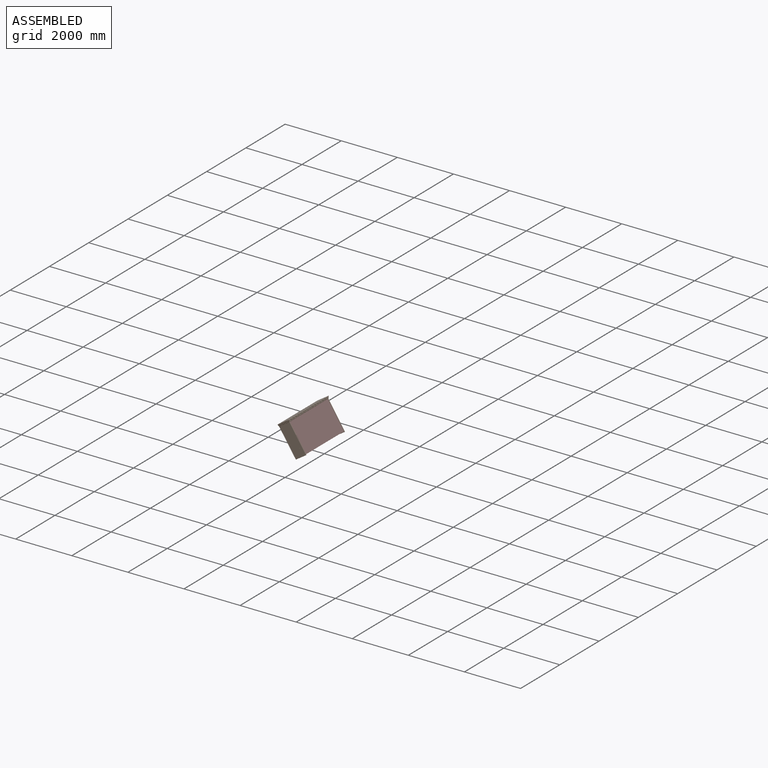
[diagram: assembled view]
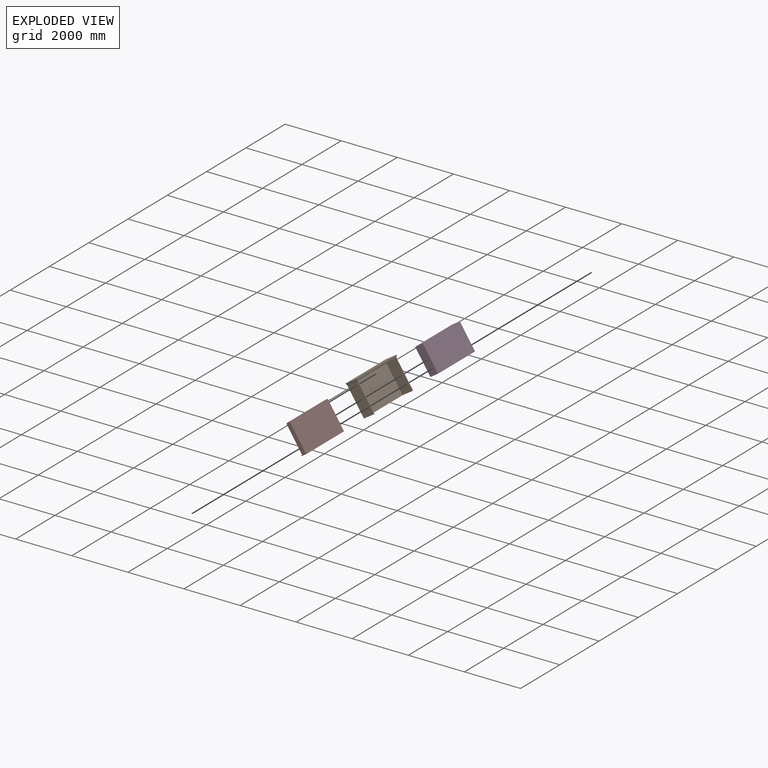
[diagram: exploded view]
GUIDED TOUR — MATED ASSEMBLY (Onshape document f06884bef4abd37ec8bd1d48, AutoMate assembly f06884bef4abd37ec8bd1d48_18d466214ae3073c1a5c1cfb_0f7172fed6433e7fdf9dc04e_default)

This assembly has 21 components, labeled P0..P20 below (a component is one placed occurrence of a part; the same part can appear more than once), held together by 22 mates. A mate is a constraint between two components; its type names the relative motion it leaves free:
  PLANAR — leaves sliding in the plane through the listed point (normal = the listed direction) and rotation about that normal free,
  REVOLUTE — leaves rotation about the listed axis free (a hinge).
Axis/direction vectors are unit vectors and 'through' points are millimeter coordinates, both in the assembly's world frame.

MATES
  1. REVOLUTE "Revolute 14": P14 <-> P7, axis (0.000, 1.000, 0.000) through (-254.89, 1122.72, 1074.25) mm
  2. REVOLUTE "Revolute 2": P12 <-> P17, axis (0.000, 1.000, 0.000) through (-254.89, -879.64, 1074.25) mm
  3. REVOLUTE "Revolute 3": P4 <-> P12, axis (0.000, -1.000, 0.000) through (-254.89, -879.64, 1074.25) mm
  4. REVOLUTE "Revolute 16": P9 <-> P12, axis (0.000, -1.000, 0.000) through (-254.89, -881.75, 1074.25) mm
  5. REVOLUTE "Revolute 9": P11 <-> P17, axis (0.000, -1.000, 0.000) through (-254.89, 1101.56, 1074.25) mm
  6. REVOLUTE "Revolute 12": P13 <-> P5, axis (0.000, -1.000, 0.000) through (-254.89, -858.48, 1074.25) mm
  7. REVOLUTE "Revolute 1": P15 <-> P5, axis (0.000, -1.000, 0.000) through (-254.89, -860.07, 1074.25) mm
  8. REVOLUTE "Revolute 6": P0 <-> P1, axis (0.000, -1.000, 0.000) through (-254.89, 1082.51, 1074.25) mm
  9. REVOLUTE "Revolute 13": P20 <-> P14, axis (0.000, 1.000, 0.000) through (-254.89, 1113.19, 1074.25) mm
  10. REVOLUTE "Revolute 17": P19 <-> P8, axis (0.000, 1.000, 0.000) through (-254.89, -837.32, 1074.25) mm
  11. PLANAR "Planar 3": P15 <-> P3, direction (0.000, -1.000, 0.000) through (-409.49, 1051.28, 1339.78) mm
  12. REVOLUTE "Revolute 10": P10 <-> P13, axis (0.000, 1.000, 0.000) through (-254.89, -848.96, 1074.25) mm
  13. REVOLUTE "Revolute 4": P16 <-> P4, axis (0.000, -1.000, 0.000) through (-254.89, -870.12, 1074.25) mm
  14. REVOLUTE "Revolute 5": P5 <-> P16, axis (0.000, -1.000, 0.000) through (-254.89, -860.59, 1074.25) mm
  15. REVOLUTE "Revolute 11": P10 <-> P8, axis (0.000, 1.000, 0.000) through (-254.89, -839.43, 1074.25) mm
  16. REVOLUTE "Revolute 19": P2 <-> P7, axis (0.000, -1.000, 0.000) through (-254.89, 1124.83, 1074.25) mm
  17. REVOLUTE "Revolute 8": P11 <-> P18, axis (0.000, -1.000, 0.000) through (-254.89, 1101.56, 1074.25) mm
  18. PLANAR "Planar 1": P15 <-> P3, direction (-0.837, 0.000, -0.547) through (-352.49, 105.13, 1374.57) mm
  19. REVOLUTE "Revolute 7": P18 <-> P0, axis (0.000, -1.000, 0.000) through (-254.89, 1092.03, 1074.25) mm
  20. REVOLUTE "Revolute 15": P20 <-> P11, axis (0.000, -1.000, 0.000) through (-254.89, 1103.67, 1074.25) mm
  21. REVOLUTE "Revolute 18": P6 <-> P1, axis (0.000, -1.000, 0.000) through (-254.89, 1080.40, 1074.25) mm
  22. PLANAR "Planar 2": P15 <-> P3, direction (-0.547, 0.000, 0.837) through (-151.25, 105.13, 891.65) mm

ASSEMBLY ORDER
  1. P15 — the base component [order verified]
  2. P17 [order verified]
  3. P3 [order verified]
  4. P5 [order verified]
  5. P9 [order verified]
  6. P16 [order verified]
  7. P13 [order verified]
  8. P4 [order verified]
  9. P10 [order verified]
  10. P8 [order verified]
  11. P12 [order verified]
  12. P19 [order verified]
  13. P1 [order verified]
  14. P0 [order verified]
  15. P18 [order verified]
  16. P11 [order verified]
  17. P6 [order verified]
  18. P20 [order verified]
  19. P14 [order verified]
  20. P7 [order verified]
  21. P2 [order verified]
(P3, P17 verified with a relaxed clearance tolerance: the source model stores slight part interference there.)
Order-tag legend:
  [order verified] — this step's position reverses a verified removal order: the component was checked to insert without passing through the ones already placed.

Of the 21 components, 21 carry the full construction recipe — the FeatureScript program that regenerates the part's solid from scratch; the rest are supplied as boundary geometry only.
Because this assembly has more than 12 components, the tour below covers the 12 most significant ones individually (every recipe-attached component first, then the largest by part volume), in assembly order; the remaining 9 are summarized together in a grouped section at the end.
Each toured component is shown spotlighted twice — in the assembled view, then in the exploded view, where a leader line traces a displaced component back to its assembled socket (saturated green if recipe-attached, orange if geometry-only; every other component desaturated gray) — followed by its recipe or geometry summary and the mates that hold it.
NOTE — this tour is split across 2 documents so each fits a 32k-token context. This is document 1: the component sections continue in the remaining 1 document, each repeating the header above.
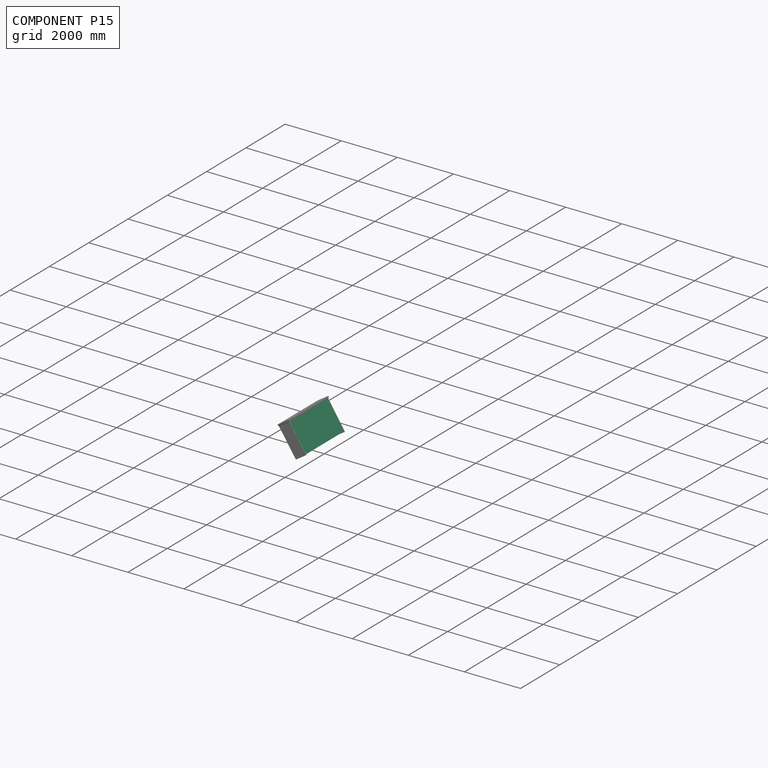
[diagram: component P15 — assembled]
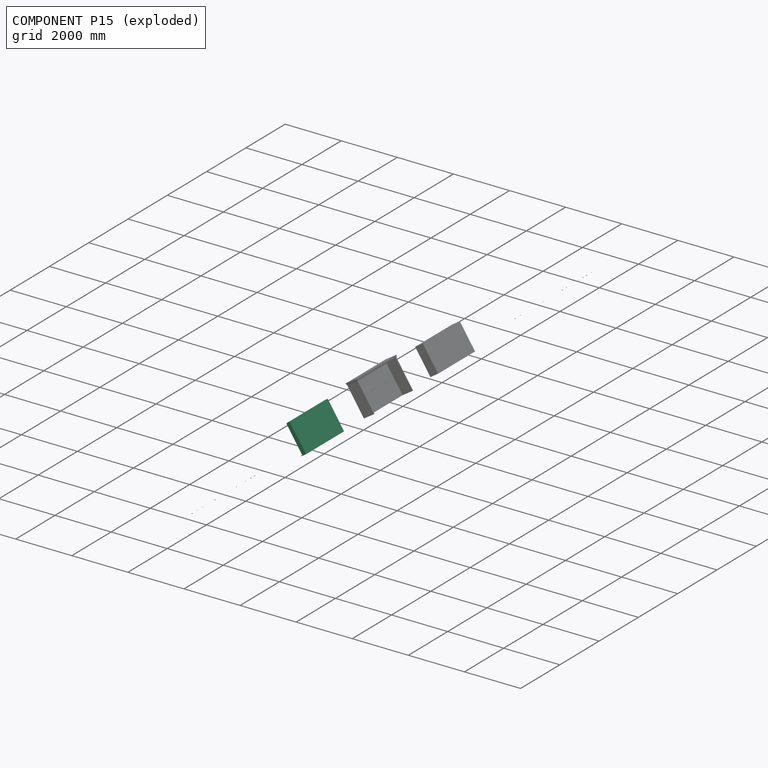
[diagram: component P15 — exploded]
COMPONENT P15 — recipe-attached (CADFS 00953847, mesh-verified: the recipe's output STEP matches this component's geometry to below the mesh-comparison resolution (tessellation chordal tolerance ~3.32 mm)).
Held by: REVOLUTE mate "Revolute 1" to P5; PLANAR mate "Planar 3" to P3; PLANAR mate "Planar 1" to P3; PLANAR mate "Planar 2" to P3.
Construction recipe (FeatureScript — the CAD program that rebuilds this solid; sketch coordinates are in the units given by the * unit suffixes, e.g. mm):

FeatureScript 1511;
import(path : "onshape/std/geometry.fs", version : "1511.0");
import(path : "onshape/std/common.fs", version : "1511.0");
const mm = millimeter;
const VERTEX = EntityType.VERTEX;
const EDGE = EntityType.EDGE;
const FACE = EntityType.FACE;
const BODY = EntityType.BODY;
function v(x, y){return vector(x, y);}
function OD(order){return orderDisambiguation(order);}
function OSD(set){return originalSetDisambiguation(set);}
function TD(topology){return topologyDisambiguation(topology);}
function TDD(query){return trueDependencyDisambiguation(query);}
function sQuery(a, b, c) {return sketchEntityQuery(a, b, c);}

annotation { "Feature Type Name" : "Feature", "Feature Type Description" : "" }
export const myFeature = defineFeature(function(context is Context, id is Id, definition is map)
    precondition{}
    {
        {
            var Q0;
            Q0=qCreatedBy(makeId("Top.planeOp"),FACE);
            var sketch = newSketch(context, id + "F0", { "sketchPlane" : qUnion([Q0])});
            skLineSegment(sketch, "E0.bottom", {"start": v(-965.2, 533.4) * mm, "end": v(965.2, 533.4) * mm});
            skLineSegment(sketch, "E0.top", {"start": v(-965.2, -533.4) * mm, "end": v(965.2, -533.4) * mm});
            skLineSegment(sketch, "E0.left", {"start": v(-965.2, 533.4) * mm, "end": v(-965.2, -533.4) * mm});
            skLineSegment(sketch, "E0.right", {"start": v(965.2, 533.4) * mm, "end": v(965.2, -533.4) * mm});
            skPoint(sketch, "E0.middle", {"position": v(0, 0) * mm});
            skSolve(sketch);
        }
        {
            var Q0;
            Q0 = qSketchRegion(id + "F0", true);
            extrude(context, id + "F1", {"entities" : qUnion([Q0]), "depth" : 19.05 * mm, "offsetDistance" : 25.4 * mm});
        }
        {
            var Q0;
            Q0=makeQuery(id+"F1.opExtrude","CAP_FACE",FACE,{"disambiguationData":[OSD([sQuery(id+"F0.wireOp",EDGE,"E0.bottom"),sQuery(id+"F0.wireOp",EDGE,"E0.top"),sQuery(id+"F0.wireOp",EDGE,"E0.left"),sQuery(id+"F0.wireOp",EDGE,"E0.right")])],"isStart":false});
            var sketch = newSketch(context, id + "F2", { "sketchPlane" : qUnion([Q0])});
            skLineSegment(sketch, "E1.bottom", {"start": v(-965.2, -533.4) * mm, "end": v(965.2, -533.4) * mm});
            skLineSegment(sketch, "E1.top", {"start": v(-965.2, -514.35) * mm, "end": v(965.2, -514.35) * mm});
            skLineSegment(sketch, "E1.left", {"start": v(-965.2, -533.4) * mm, "end": v(-965.2, -514.35) * mm});
            skLineSegment(sketch, "E1.right", {"start": v(965.2, -533.4) * mm, "end": v(965.2, -514.35) * mm});
            skSolve(sketch);
        }
        {
            var Q0;
            Q0 = qSketchRegion(id + "F2", true);
            extrude(context, id + "F3", {"entities" : qUnion([Q0]), "operationType" : NewBodyOperationType.ADD, "depth" : 88.9 * mm, "offsetDistance" : 25.4 * mm});
        }
        {
            var Q0;
            Q0=makeQuery(id+"F1.opExtrude","CAP_FACE",FACE,{"disambiguationData":[OSD([sQuery(id+"F0.wireOp",EDGE,"E0.bottom"),sQuery(id+"F0.wireOp",EDGE,"E0.top"),sQuery(id+"F0.wireOp",EDGE,"E0.left"),sQuery(id+"F0.wireOp",EDGE,"E0.right")])],"isStart":false});
            var sketch = newSketch(context, id + "F4", { "sketchPlane" : qUnion([Q0])});
            skLineSegment(sketch, "E2.bottom", {"start": v(-965.2, 533.4) * mm, "end": v(965.2, 533.4) * mm});
            skLineSegment(sketch, "E2.top", {"start": v(-965.2, 514.35) * mm, "end": v(965.2, 514.35) * mm});
            skLineSegment(sketch, "E2.left", {"start": v(-965.2, 533.4) * mm, "end": v(-965.2, 514.35) * mm});
            skLineSegment(sketch, "E2.right", {"start": v(965.2, 533.4) * mm, "end": v(965.2, 514.35) * mm});
            skSolve(sketch);
        }
        {
            var Q0;
            Q0 = qSketchRegion(id + "F4", true);
            extrude(context, id + "F5", {"entities" : qUnion([Q0]), "operationType" : NewBodyOperationType.ADD, "depth" : 190.5 * mm, "offsetDistance" : 25.4 * mm});
        }
        {
            var Q0;
            Q0=makeQuery(id+"F5.boolean.opBoolean","MERGE",FACE,{"derivedFrom":[makeQuery(id+"F3.boolean.opBoolean","MERGE",FACE,{"derivedFrom":[makeQuery(id+"F1.opExtrude","SWEPT_FACE",FACE,{"disambiguationData":[OSD([sQuery(id+"F0.wireOp",EDGE,"E0.left")])]}),makeQuery(id+"F3.opExtrude","SWEPT_FACE",FACE,{"disambiguationData":[OSD([sQuery(id+"F2.wireOp",EDGE,"E1.left")])]})]}),makeQuery(id+"F5.opExtrude","SWEPT_FACE",FACE,{"disambiguationData":[OSD([sQuery(id+"F4.wireOp",EDGE,"E2.left")])]})]});
            var sketch = newSketch(context, id + "F6", { "sketchPlane" : qUnion([Q0])});
            skLineSegment(sketch, "E3.bottom", {"start": v(533.4, 0) * mm, "end": v(-533.4, 0) * mm});
            skLineSegment(sketch, "E3.top", {"start": v(488.95, 152.4) * mm, "end": v(-533.4, 152.4) * mm});
            skLineSegment(sketch, "E3.left", {"start": v(533.4, 0) * mm, "end": v(533.4, 107.95) * mm});
            skLineSegment(sketch, "E3.right", {"start": v(-533.4, 0) * mm, "end": v(-533.4, 152.4) * mm});
            skPoint(sketch, "E4.visualSharp", {"position": v(533.4, 152.4) * mm});
            skArc(sketch, "E4.filletArc", {"start": v(533.4, 107.95) * mm, "mid": v(520.38, 139.38) * mm, "end": v(488.95, 152.4) * mm});
            skSolve(sketch);
        }
        {
            var Q0;
            Q0 = qSketchRegion(id + "F6", true);
            extrude(context, id + "F7", {"entities" : qUnion([Q0]), "operationType" : NewBodyOperationType.ADD, "oppositeDirection" : true, "depth" : 19.05 * mm, "offsetDistance" : 25.4 * mm});
        }
        {
            var Q0;
            Q0=makeQuery(id+"F5.boolean.opBoolean","MERGE",FACE,{"derivedFrom":[makeQuery(id+"F3.boolean.opBoolean","MERGE",FACE,{"derivedFrom":[makeQuery(id+"F1.opExtrude","SWEPT_FACE",FACE,{"disambiguationData":[OSD([sQuery(id+"F0.wireOp",EDGE,"E0.right")])]}),makeQuery(id+"F3.opExtrude","SWEPT_FACE",FACE,{"disambiguationData":[OSD([sQuery(id+"F2.wireOp",EDGE,"E1.right")])]})]}),makeQuery(id+"F5.opExtrude","SWEPT_FACE",FACE,{"disambiguationData":[OSD([sQuery(id+"F4.wireOp",EDGE,"E2.right")])]})]});
            var sketch = newSketch(context, id + "F8", { "sketchPlane" : qUnion([Q0])});
            skLineSegment(sketch, "E5", {"start": v(-533.4, 0) * mm, "end": v(533.4, 0) * mm});
            skLineSegment(sketch, "E6", {"start": v(-533.4, 0) * mm, "end": v(-533.4, 107.95) * mm});
            skArc(sketch, "E7", {"start": v(-488.95, 152.4) * mm, "mid": v(-520.38, 139.38) * mm, "end": v(-533.4, 107.95) * mm});
            skLineSegment(sketch, "E8", {"start": v(-488.95, 152.4) * mm, "end": v(533.4, 152.4) * mm});
            skLineSegment(sketch, "E9", {"start": v(533.4, 0) * mm, "end": v(533.4, 152.4) * mm});
            skSolve(sketch);
        }
        {
            var Q0;
            Q0 = qSketchRegion(id + "F8", true);
            extrude(context, id + "F9", {"entities" : qUnion([Q0]), "operationType" : NewBodyOperationType.ADD, "oppositeDirection" : true, "depth" : 19.05 * mm, "offsetDistance" : 25.4 * mm});
        }
        {
            var Q0;
            Q0=makeQuery(id+"F7.boolean.opBoolean","MERGE",FACE,{"derivedFrom":[makeQuery(id+"F5.boolean.opBoolean","MERGE",FACE,{"derivedFrom":[makeQuery(id+"F3.boolean.opBoolean","MERGE",FACE,{"derivedFrom":[makeQuery(id+"F1.opExtrude","SWEPT_FACE",FACE,{"disambiguationData":[OSD([sQuery(id+"F0.wireOp",EDGE,"E0.left")])]}),makeQuery(id+"F3.opExtrude","SWEPT_FACE",FACE,{"disambiguationData":[OSD([sQuery(id+"F2.wireOp",EDGE,"E1.left")])]})]}),makeQuery(id+"F5.opExtrude","SWEPT_FACE",FACE,{"disambiguationData":[OSD([sQuery(id+"F4.wireOp",EDGE,"E2.left")])]})]}),makeQuery(id+"F7.opExtrude","CAP_FACE",FACE,{"disambiguationData":[OSD([sQuery(id+"F6.wireOp",EDGE,"E3.bottom"),sQuery(id+"F6.wireOp",EDGE,"E3.top"),sQuery(id+"F6.wireOp",EDGE,"E3.left"),sQuery(id+"F6.wireOp",EDGE,"E3.right"),sQuery(id+"F6.wireOp",EDGE,"E4.filletArc")])],"isStart":true})]});
            var sketch = newSketch(context, id + "F10", { "sketchPlane" : qUnion([Q0])});
            skCircle(sketch, "E10", {"center": v(-304.8, 101.6) * mm, "radius": 7.94 * mm});
            skSolve(sketch);
        }
        {
            var Q0;
            Q0 = qSketchRegion(id + "F10", true);
            extrude(context, id + "F11", {"entities" : qUnion([Q0]), "operationType" : NewBodyOperationType.REMOVE, "endBound" : BoundingType.THROUGH_ALL, "oppositeDirection" : true, "depth" : 25.4 * mm, "offsetDistance" : 25.4 * mm});
        }
        {
            var Q0;
            Q0=makeQuery(id+"F7.boolean.opBoolean","MERGE",FACE,{"derivedFrom":[makeQuery(id+"F5.boolean.opBoolean","MERGE",FACE,{"derivedFrom":[makeQuery(id+"F3.boolean.opBoolean","MERGE",FACE,{"derivedFrom":[makeQuery(id+"F1.opExtrude","SWEPT_FACE",FACE,{"disambiguationData":[OSD([sQuery(id+"F0.wireOp",EDGE,"E0.left")])]}),makeQuery(id+"F3.opExtrude","SWEPT_FACE",FACE,{"disambiguationData":[OSD([sQuery(id+"F2.wireOp",EDGE,"E1.left")])]})]}),makeQuery(id+"F5.opExtrude","SWEPT_FACE",FACE,{"disambiguationData":[OSD([sQuery(id+"F4.wireOp",EDGE,"E2.left")])]})]}),makeQuery(id+"F7.opExtrude","CAP_FACE",FACE,{"disambiguationData":[OSD([sQuery(id+"F6.wireOp",EDGE,"E3.bottom"),sQuery(id+"F6.wireOp",EDGE,"E3.top"),sQuery(id+"F6.wireOp",EDGE,"E3.left"),sQuery(id+"F6.wireOp",EDGE,"E3.right"),sQuery(id+"F6.wireOp",EDGE,"E4.filletArc")])],"isStart":true})]});
            var sketch = newSketch(context, id + "F12", { "sketchPlane" : qUnion([Q0])});
            skLineSegment(sketch, "E11.bottom", {"start": v(-325.12, 0) * mm, "end": v(-321.94, 0) * mm});
            skLineSegment(sketch, "E11.top", {"start": v(-325.12, 3.18) * mm, "end": v(-321.94, 3.18) * mm});
            skLineSegment(sketch, "E11.left", {"start": v(-325.12, 0) * mm, "end": v(-325.12, 3.18) * mm});
            skLineSegment(sketch, "E11.right", {"start": v(-321.94, 0) * mm, "end": v(-321.94, 3.18) * mm});
            skLineSegment(sketch, "E12.1.0.0", {"start": v(-113.03, 3.18) * mm, "end": v(-109.85, 3.18) * mm});
            skLineSegment(sketch, "E12.1.0.1", {"start": v(-113.03, 0) * mm, "end": v(-113.03, 3.18) * mm});
            skLineSegment(sketch, "E12.1.0.2", {"start": v(-109.85, 0) * mm, "end": v(-109.85, 3.18) * mm});
            skLineSegment(sketch, "E12.1.0.3", {"start": v(-113.03, 0) * mm, "end": v(-109.85, 0) * mm});
            skLineSegment(sketch, "E12.2.0.0", {"start": v(99.06, 3.18) * mm, "end": v(102.24, 3.18) * mm});
            skLineSegment(sketch, "E12.2.0.1", {"start": v(99.06, 0) * mm, "end": v(99.06, 3.18) * mm});
            skLineSegment(sketch, "E12.2.0.2", {"start": v(102.24, 0) * mm, "end": v(102.24, 3.18) * mm});
            skLineSegment(sketch, "E12.2.0.3", {"start": v(99.06, 0) * mm, "end": v(102.24, 0) * mm});
            skLineSegment(sketch, "E12.3.0.0", {"start": v(311.15, 3.18) * mm, "end": v(314.33, 3.18) * mm});
            skLineSegment(sketch, "E12.3.0.1", {"start": v(311.15, 0) * mm, "end": v(311.15, 3.18) * mm});
            skLineSegment(sketch, "E12.3.0.2", {"start": v(314.33, 0) * mm, "end": v(314.33, 3.18) * mm});
            skLineSegment(sketch, "E12.3.0.3", {"start": v(311.15, 0) * mm, "end": v(314.33, 0) * mm});
            skLineSegment(sketch, "E12.direction1", {"start": v(-325.12, 0) * mm, "end": v(-113.03, 0) * mm, "construction": true});
            skSolve(sketch);
        }
        {
            var Q0;
            Q0 = qSketchRegion(id + "F12", true);
            var Q1;
            Q1=makeQuery(id+"F9.boolean.opBoolean","MERGE",FACE,{"derivedFrom":[makeQuery(id+"F5.boolean.opBoolean","MERGE",FACE,{"derivedFrom":[makeQuery(id+"F3.boolean.opBoolean","MERGE",FACE,{"derivedFrom":[makeQuery(id+"F1.opExtrude","SWEPT_FACE",FACE,{"disambiguationData":[OSD([sQuery(id+"F0.wireOp",EDGE,"E0.right")])]}),makeQuery(id+"F3.opExtrude","SWEPT_FACE",FACE,{"disambiguationData":[OSD([sQuery(id+"F2.wireOp",EDGE,"E1.right")])]})]}),makeQuery(id+"F5.opExtrude","SWEPT_FACE",FACE,{"disambiguationData":[OSD([sQuery(id+"F4.wireOp",EDGE,"E2.right")])]})]}),makeQuery(id+"F9.opExtrude","CAP_FACE",FACE,{"disambiguationData":[OSD([sQuery(id+"F8.wireOp",EDGE,"E5"),sQuery(id+"F8.wireOp",EDGE,"E6"),sQuery(id+"F8.wireOp",EDGE,"E7"),sQuery(id+"F8.wireOp",EDGE,"E8"),sQuery(id+"F8.wireOp",EDGE,"E9")])],"isStart":true})]});
            extrude(context, id + "F13", {"entities" : qUnion([Q0]), "operationType" : NewBodyOperationType.REMOVE, "endBound" : BoundingType.UP_TO_SURFACE, "oppositeDirection" : true, "depth" : 25.4 * mm, "endBoundEntityFace" : qUnion([Q1]), "offsetDistance" : 25.4 * mm});
        }
    });
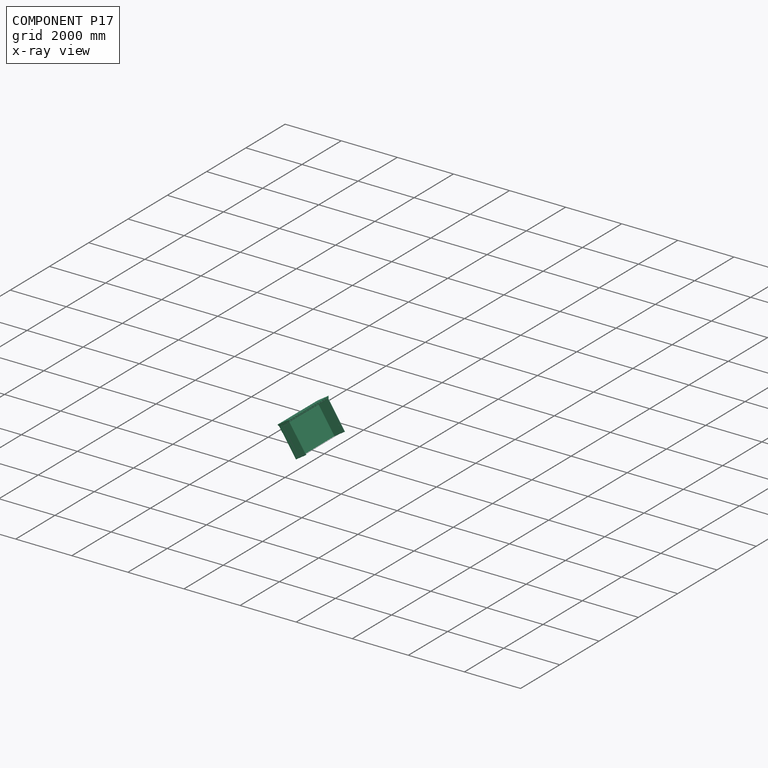
[diagram: component P17 — x-ray view]
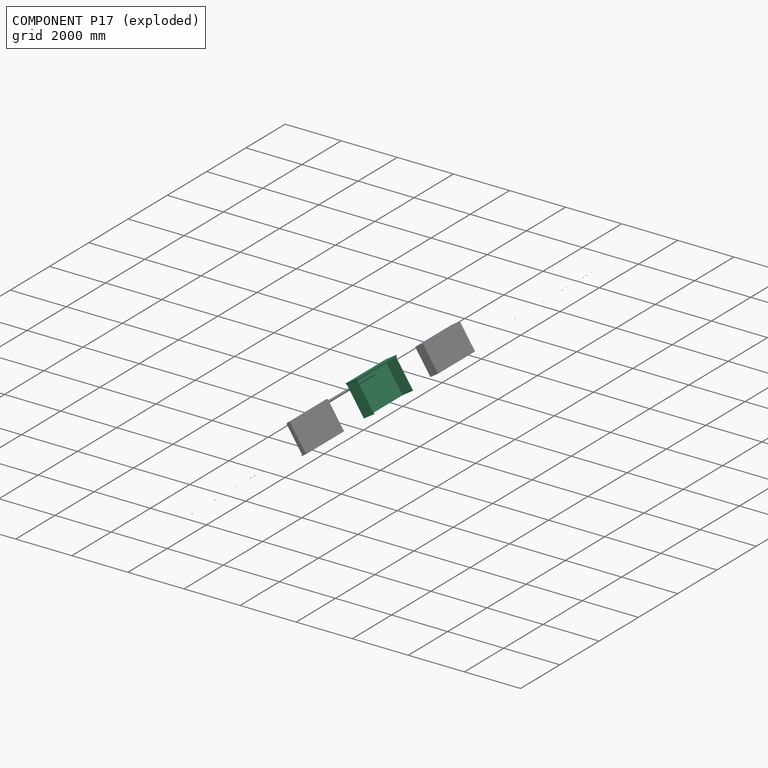
[diagram: component P17 — exploded]
COMPONENT P17 — recipe-attached (CADFS 00953848, mesh-verified: the recipe's output STEP matches this component's geometry to below the mesh-comparison resolution (tessellation chordal tolerance ~3.6 mm)).
Held by: REVOLUTE mate "Revolute 2" to P12; REVOLUTE mate "Revolute 9" to P11.
Construction recipe (FeatureScript — the CAD program that rebuilds this solid; sketch coordinates are in the units given by the * unit suffixes, e.g. mm):

FeatureScript 1511;
import(path : "onshape/std/geometry.fs", version : "1511.0");
import(path : "onshape/std/common.fs", version : "1511.0");
const mm = millimeter;
const VERTEX = EntityType.VERTEX;
const EDGE = EntityType.EDGE;
const FACE = EntityType.FACE;
const BODY = EntityType.BODY;
function v(x, y){return vector(x, y);}
function OD(order){return orderDisambiguation(order);}
function OSD(set){return originalSetDisambiguation(set);}
function TD(topology){return topologyDisambiguation(topology);}
function TDD(query){return trueDependencyDisambiguation(query);}
function sQuery(a, b, c) {return sketchEntityQuery(a, b, c);}

annotation { "Feature Type Name" : "Feature", "Feature Type Description" : "" }
export const myFeature = defineFeature(function(context is Context, id is Id, definition is map)
    precondition{}
    {
        {
            var Q0;
            Q0=qCreatedBy(makeId("Front.planeOp"),FACE);
            var sketch = newSketch(context, id + "F0", { "sketchPlane" : qUnion([Q0])});
            skLineSegment(sketch, "E0.bottom", {"start": v(-215.9, -569.91) * mm, "end": v(215.9, -569.91) * mm});
            skLineSegment(sketch, "E0.top", {"start": v(-215.9, 569.91) * mm, "end": v(215.9, 569.91) * mm});
            skLineSegment(sketch, "E0.left", {"start": v(-215.9, -569.91) * mm, "end": v(-215.9, 569.91) * mm});
            skLineSegment(sketch, "E0.right", {"start": v(215.9, -569.91) * mm, "end": v(215.9, 569.91) * mm});
            skPoint(sketch, "E0.middle", {"position": v(0, 0) * mm});
            skSolve(sketch);
        }
        {
            var Q0;
            Q0=makeQuery(id+"F0.imprint","IMPRINT",FACE,{"disambiguationData":[TD([[makeQuery(id+"F0.imprint","IMPRINT",EDGE,{"derivedFrom":sQuery(id+"F0.wireOp",EDGE,"E0.bottom")}),1.0]])]});
            extrude(context, id + "F1", {"entities" : qUnion([Q0]), "depth" : 19.05 * mm, "offsetDistance" : 25.4 * mm});
        }
        {
            var Q0;
            Q0=makeQuery(id+"F1.opExtrude","SWEPT_FACE",FACE,{"disambiguationData":[OSD([sQuery(id+"F0.wireOp",EDGE,"E0.top")])]});
            var sketch = newSketch(context, id + "F2", { "sketchPlane" : qUnion([Q0])});
            skLineSegment(sketch, "E1.bottom", {"start": v(-215.9, -19.05) * mm, "end": v(215.9, -19.05) * mm});
            skLineSegment(sketch, "E1.top", {"start": v(-215.9, 1962.15) * mm, "end": v(215.9, 1962.15) * mm});
            skLineSegment(sketch, "E1.left", {"start": v(-215.9, -19.05) * mm, "end": v(-215.9, 1962.15) * mm});
            skLineSegment(sketch, "E1.right", {"start": v(215.9, -19.05) * mm, "end": v(215.9, 1962.15) * mm});
            skSolve(sketch);
        }
        {
            var Q0;
            Q0 = qSketchRegion(id + "F2", true);
            extrude(context, id + "F3", {"entities" : qUnion([Q0]), "operationType" : NewBodyOperationType.ADD, "depth" : 19.05 * mm, "offsetDistance" : 25.4 * mm});
        }
        {
            var Q0;
            Q0=makeQuery(id+"F3.opExtrude","SWEPT_FACE",FACE,{"disambiguationData":[OSD([sQuery(id+"F2.wireOp",EDGE,"E1.top")])]});
            var sketch = newSketch(context, id + "F4", { "sketchPlane" : qUnion([Q0])});
            skLineSegment(sketch, "E2.bottom", {"start": v(-215.9, 588.96) * mm, "end": v(215.9, 588.96) * mm});
            skLineSegment(sketch, "E2.top", {"start": v(-215.9, -569.91) * mm, "end": v(215.9, -569.91) * mm});
            skLineSegment(sketch, "E2.left", {"start": v(-215.9, 588.96) * mm, "end": v(-215.9, -569.91) * mm});
            skLineSegment(sketch, "E2.right", {"start": v(215.9, 588.96) * mm, "end": v(215.9, -569.91) * mm});
            skSolve(sketch);
        }
        {
            var Q0;
            Q0 = qSketchRegion(id + "F4", true);
            extrude(context, id + "F5", {"entities" : qUnion([Q0]), "operationType" : NewBodyOperationType.ADD, "oppositeDirection" : true, "depth" : 19.05 * mm, "offsetDistance" : 25.4 * mm});
        }
        {
            var Q0;
            Q0=makeQuery(id+"F5.boolean.opBoolean","MERGE",FACE,{"derivedFrom":[makeQuery(id+"F3.boolean.opBoolean","MERGE",FACE,{"derivedFrom":[makeQuery(id+"F1.opExtrude","SWEPT_FACE",FACE,{"disambiguationData":[OSD([sQuery(id+"F0.wireOp",EDGE,"E0.left")])]}),makeQuery(id+"F3.opExtrude","SWEPT_FACE",FACE,{"disambiguationData":[OSD([sQuery(id+"F2.wireOp",EDGE,"E1.left")])]})]}),makeQuery(id+"F5.opExtrude","SWEPT_FACE",FACE,{"disambiguationData":[OSD([sQuery(id+"F4.wireOp",EDGE,"E2.right")])]})]});
            var sketch = newSketch(context, id + "F6", { "sketchPlane" : qUnion([Q0])});
            skLineSegment(sketch, "E3.bottom", {"start": v(-1962.15, 588.96) * mm, "end": v(19.05, 588.96) * mm});
            skLineSegment(sketch, "E3.top", {"start": v(-1962.15, -569.91) * mm, "end": v(19.05, -569.91) * mm});
            skLineSegment(sketch, "E3.left", {"start": v(-1962.15, 588.96) * mm, "end": v(-1962.15, -569.91) * mm});
            skLineSegment(sketch, "E3.right", {"start": v(19.05, 588.96) * mm, "end": v(19.05, -569.91) * mm});
            skSolve(sketch);
        }
        {
            var Q0;
            Q0 = qSketchRegion(id + "F6", true);
            extrude(context, id + "F7", {"entities" : qUnion([Q0]), "operationType" : NewBodyOperationType.ADD, "depth" : 6.35 * mm, "offsetDistance" : 25.4 * mm});
        }
        {
            var Q0;
            Q0=makeQuery(id+"F7.boolean.opBoolean","MERGE",FACE,{"derivedFrom":[makeQuery(id+"F3.boolean.opBoolean","MERGE",FACE,{"derivedFrom":[makeQuery(id+"F1.opExtrude","CAP_FACE",FACE,{"disambiguationData":[OSD([sQuery(id+"F0.wireOp",EDGE,"E0.bottom"),sQuery(id+"F0.wireOp",EDGE,"E0.top"),sQuery(id+"F0.wireOp",EDGE,"E0.left"),sQuery(id+"F0.wireOp",EDGE,"E0.right")])],"isStart":false}),makeQuery(id+"F3.opExtrude","SWEPT_FACE",FACE,{"disambiguationData":[OSD([sQuery(id+"F2.wireOp",EDGE,"E1.bottom")])]})]}),makeQuery(id+"F7.opExtrude","SWEPT_FACE",FACE,{"disambiguationData":[OSD([sQuery(id+"F6.wireOp",EDGE,"E3.right")])]})]});
            var sketch = newSketch(context, id + "F8", { "sketchPlane" : qUnion([Q0])});
            skCircle(sketch, "E4", {"center": v(114.3, -315.91) * mm, "radius": 7.94 * mm});
            skSolve(sketch);
        }
        {
            var Q0;
            Q0 = qSketchRegion(id + "F8", true);
            extrude(context, id + "F9", {"entities" : qUnion([Q0]), "operationType" : NewBodyOperationType.REMOVE, "endBound" : BoundingType.THROUGH_ALL, "oppositeDirection" : true, "depth" : 25.4 * mm, "offsetDistance" : 25.4 * mm});
        }
        {
            var Q0;
            Q0=makeQuery(id+"F7.opExtrude","CAP_FACE",FACE,{"disambiguationData":[OSD([sQuery(id+"F6.wireOp",EDGE,"E3.bottom"),sQuery(id+"F6.wireOp",EDGE,"E3.top"),sQuery(id+"F6.wireOp",EDGE,"E3.left"),sQuery(id+"F6.wireOp",EDGE,"E3.right")])],"isStart":false});
            var sketch = newSketch(context, id + "F10", { "sketchPlane" : qUnion([Q0])});
            skLineSegment(sketch, "E5", {"start": v(19.05, 588.96) * mm, "end": v(50.8, 588.96) * mm});
            skLineSegment(sketch, "E6", {"start": v(19.05, 588.96) * mm, "end": v(19.05, 519.11) * mm});
            skLineSegment(sketch, "E7", {"start": v(50.8, 588.96) * mm, "end": v(50.8, 576.26) * mm});
            skFitSpline(sketch, "E8", {"points": [v(50.8, 576.26) * mm, v(41.9, 568.43) * mm, v(41, 558.06) * mm, v(31.75, 549.08) * mm], "startDerivative": vector(-56.77, -4.03) * mm, "endDerivative": vector(-38.32, -18.33) * mm});
            skLineSegment(sketch, "E9", {"start": v(31.75, 549.08) * mm, "end": v(31.75, 544) * mm});
            skArc(sketch, "E10", {"start": v(31.75, 536.56) * mm, "mid": v(36.38, 540.28) * mm, "end": v(31.75, 544) * mm});
            skLineSegment(sketch, "E11", {"start": v(31.75, 536.56) * mm, "end": v(31.75, 531.81) * mm});
            skFitSpline(sketch, "E12", {"points": [v(31.75, 531.81) * mm, v(27.13, 526.7) * mm, v(24.22, 523.36) * mm, v(19.05, 519.11) * mm], "startDerivative": vector(-0.07, -35.6) * mm, "endDerivative": vector(-38.4, -2.1) * mm});
            skSolve(sketch);
        }
        {
            var Q0;
            Q0 = qSketchRegion(id + "F10", true);
            var Q1;
            Q1=makeQuery(id+"F7.boolean.opBoolean","MERGE",EDGE,{"derivedFrom":[makeQuery(id+"F3.opExtrude","CAP_EDGE",EDGE,{"disambiguationData":[OSD([sQuery(id+"F2.wireOp",EDGE,"E1.bottom")])],"isStart":false}),makeQuery(id+"F7.opExtrude","SWEPT_EDGE",EDGE,{"disambiguationData":[OSD([sQuery(id+"F6.wireOp",EDGE,"E3.bottom"),sQuery(id+"F6.wireOp",EDGE,"E3.right")])]})]});
            var Q2;
            Q2=makeQuery(id+"F3.opExtrude","CAP_EDGE",EDGE,{"disambiguationData":[OSD([sQuery(id+"F2.wireOp",EDGE,"E1.right")])],"isStart":false});
            var Q3;
            Q3=makeQuery(id+"F7.boolean.opBoolean","MERGE",EDGE,{"derivedFrom":[makeQuery(id+"F3.opExtrude","CAP_EDGE",EDGE,{"disambiguationData":[OSD([sQuery(id+"F2.wireOp",EDGE,"E1.top")])],"isStart":false}),makeQuery(id+"F7.opExtrude","SWEPT_EDGE",EDGE,{"disambiguationData":[OSD([sQuery(id+"F6.wireOp",EDGE,"E3.bottom"),sQuery(id+"F6.wireOp",EDGE,"E3.left")])]})]});
            sweep(context, id + "F11", {"operationType" : NewBodyOperationType.ADD, "profiles" : qUnion([Q0]), "path" : qUnion([Q1, Q2, Q3])});
        }
    });
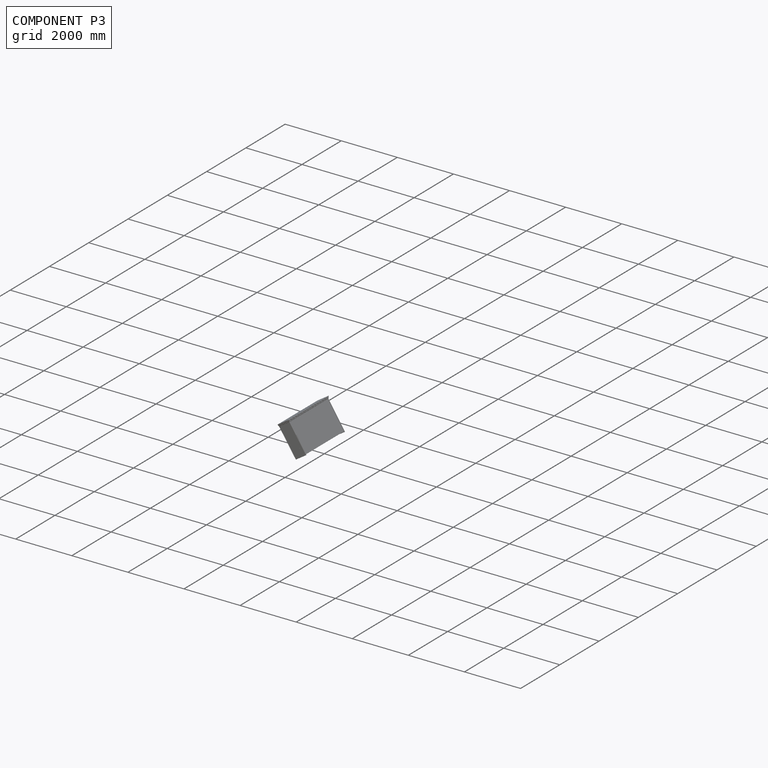
[diagram: component P3 — assembled]
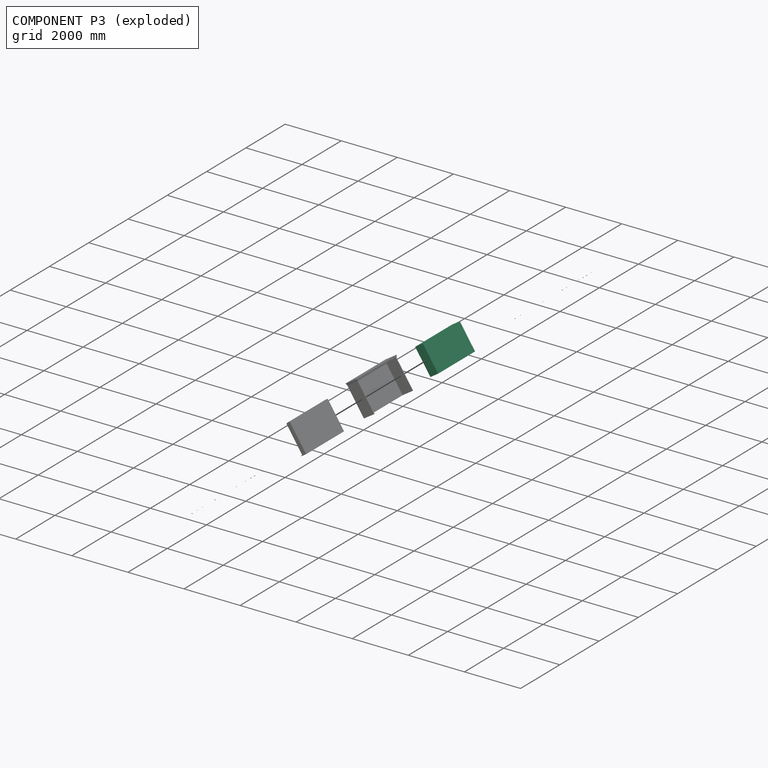
[diagram: component P3 — exploded]
COMPONENT P3 — recipe-attached (CADFS 00953846, mesh-verified: the recipe's output STEP matches this component's geometry to below the mesh-comparison resolution (tessellation chordal tolerance ~3.23 mm)).
Held by: PLANAR mate "Planar 3" to P15; PLANAR mate "Planar 1" to P15; PLANAR mate "Planar 2" to P15.
Construction recipe (FeatureScript — the CAD program that rebuilds this solid; sketch coordinates are in the units given by the * unit suffixes, e.g. mm):

FeatureScript 1511;
import(path : "onshape/std/geometry.fs", version : "1511.0");
import(path : "onshape/std/common.fs", version : "1511.0");
const mm = millimeter;
const VERTEX = EntityType.VERTEX;
const EDGE = EntityType.EDGE;
const FACE = EntityType.FACE;
const BODY = EntityType.BODY;
function v(x, y){return vector(x, y);}
function OD(order){return orderDisambiguation(order);}
function OSD(set){return originalSetDisambiguation(set);}
function TD(topology){return topologyDisambiguation(topology);}
function TDD(query){return trueDependencyDisambiguation(query);}
function sQuery(a, b, c) {return sketchEntityQuery(a, b, c);}

annotation { "Feature Type Name" : "Feature", "Feature Type Description" : "" }
export const myFeature = defineFeature(function(context is Context, id is Id, definition is map)
    precondition{}
    {
        {
            var Q0;
            Q0=qCreatedBy(makeId("Top.planeOp"),FACE);
            var sketch = newSketch(context, id + "F0", { "sketchPlane" : qUnion([Q0])});
            skLineSegment(sketch, "E0.bottom", {"start": v(-939.8, -495.3) * mm, "end": v(939.8, -495.3) * mm});
            skLineSegment(sketch, "E0.top", {"start": v(-939.8, 495.3) * mm, "end": v(939.8, 495.3) * mm});
            skLineSegment(sketch, "E0.left", {"start": v(-939.8, -495.3) * mm, "end": v(-939.8, 495.3) * mm});
            skLineSegment(sketch, "E0.right", {"start": v(939.8, -495.3) * mm, "end": v(939.8, 495.3) * mm});
            skPoint(sketch, "E0.middle", {"position": v(0, 0) * mm});
            skSolve(sketch);
        }
        {
            var Q0;
            Q0 = qSketchRegion(id + "F0", true);
            extrude(context, id + "F1", {"entities" : qUnion([Q0]), "depth" : 165.1 * mm, "offsetDistance" : 25.4 * mm, "hasSecondDirection" : true, "secondDirectionOppositeDirection" : true, "secondDirectionDepth" : 165.1 * mm});
        }
    });
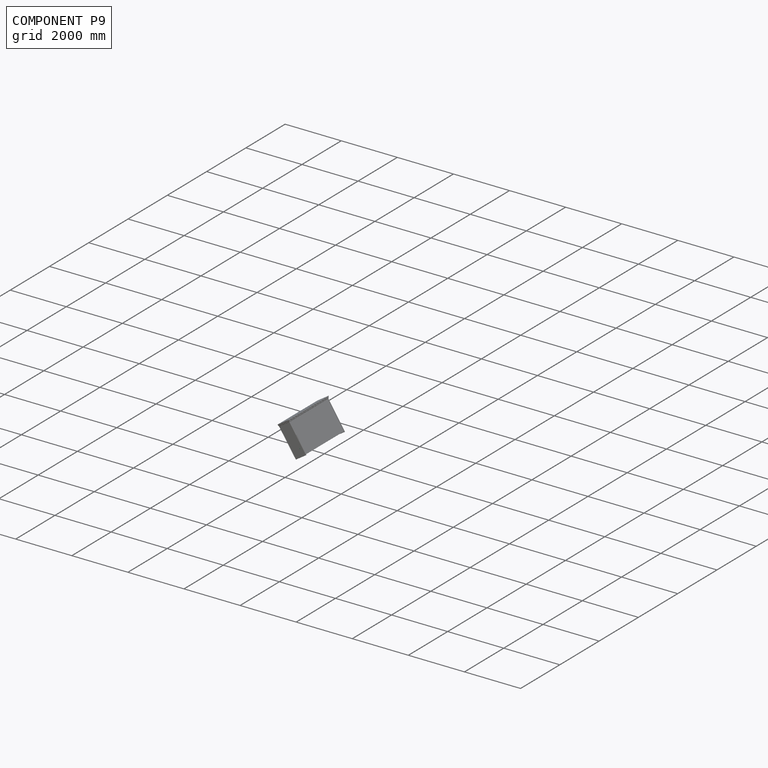
[diagram: component P9 — assembled]
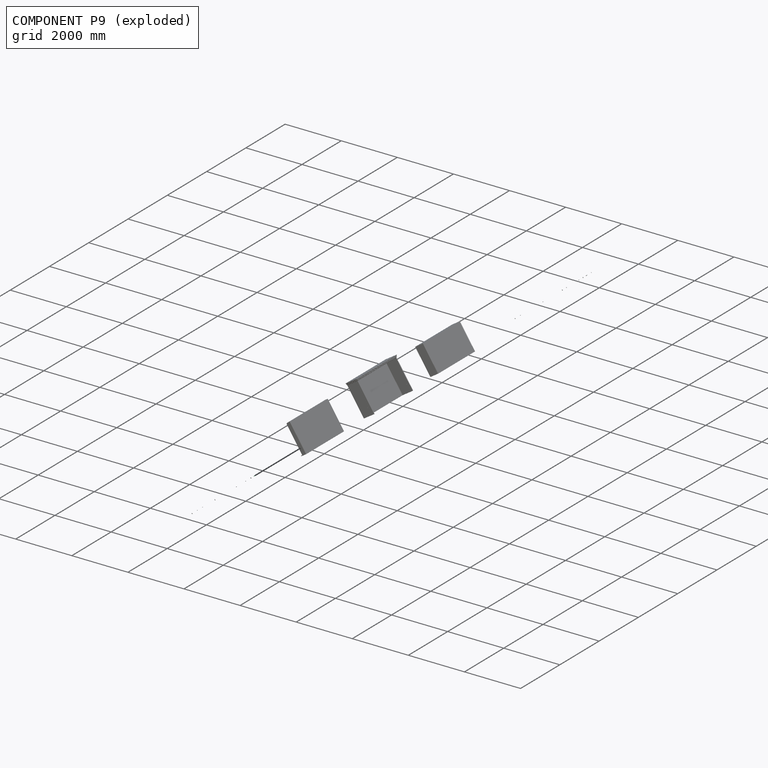
[diagram: component P9 — exploded]
COMPONENT P9 — same part as P6 (CADFS 00953852); its construction recipe is shown at P6.
Held by: REVOLUTE mate "Revolute 16" to P12.
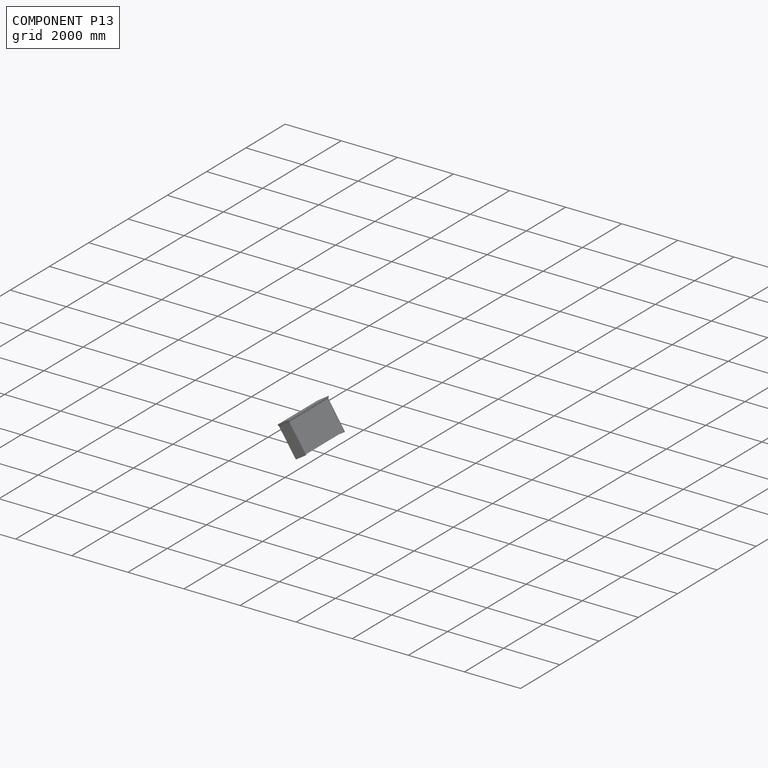
[diagram: component P13 — assembled]
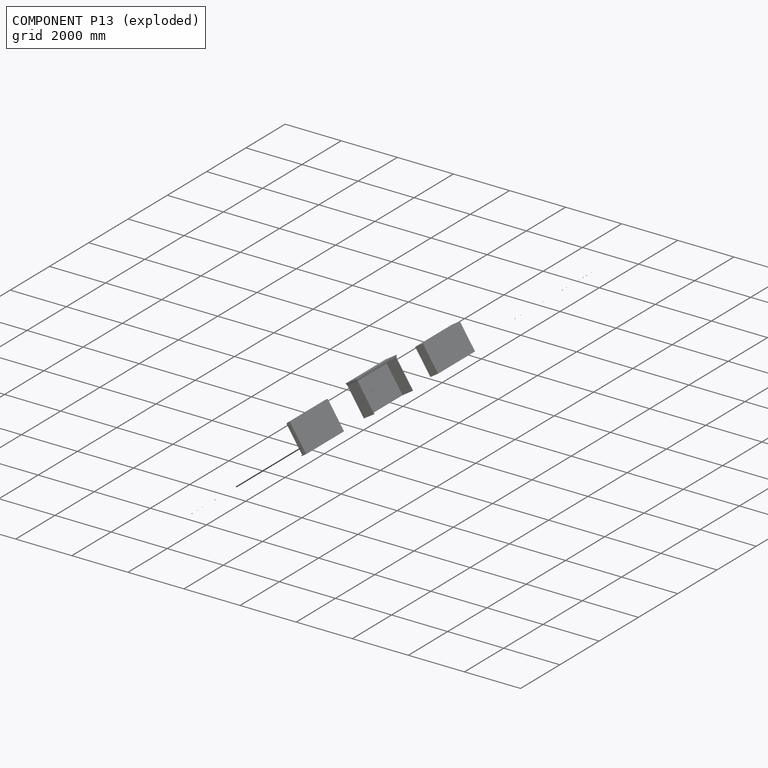
[diagram: component P13 — exploded]
COMPONENT P13 — same part as P0 (CADFS 00953849); its construction recipe is shown at P0.
Held by: REVOLUTE mate "Revolute 12" to P5; REVOLUTE mate "Revolute 10" to P10.
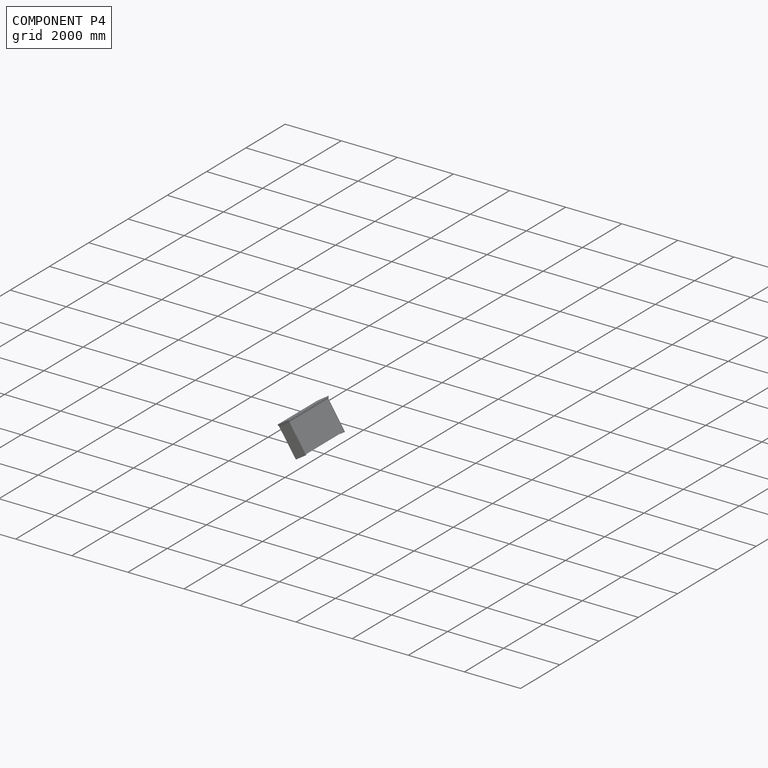
[diagram: component P4 — assembled]
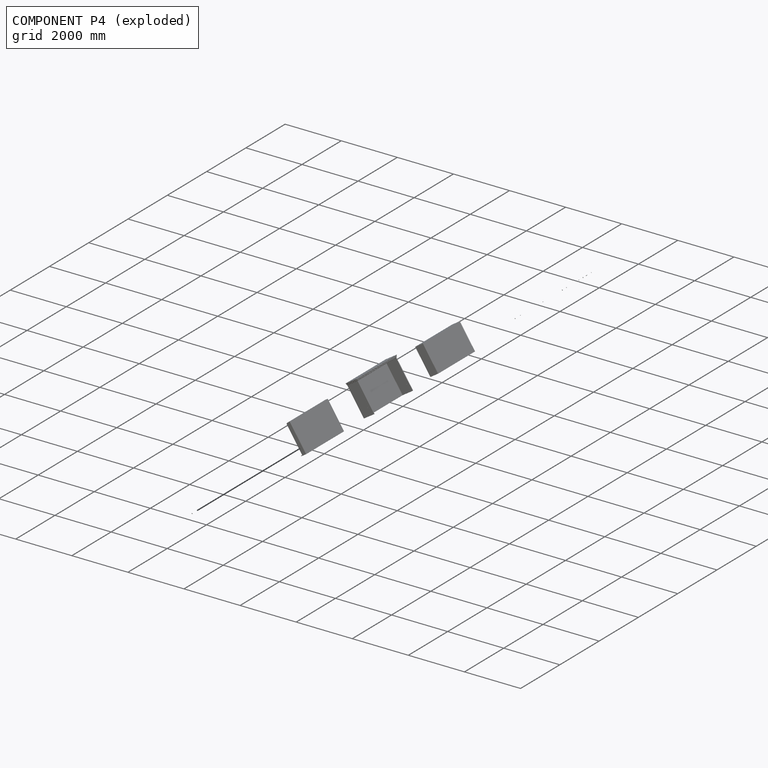
[diagram: component P4 — exploded]
COMPONENT P4 — same part as P0 (CADFS 00953849); its construction recipe is shown at P0.
Held by: REVOLUTE mate "Revolute 3" to P12; REVOLUTE mate "Revolute 4" to P16.
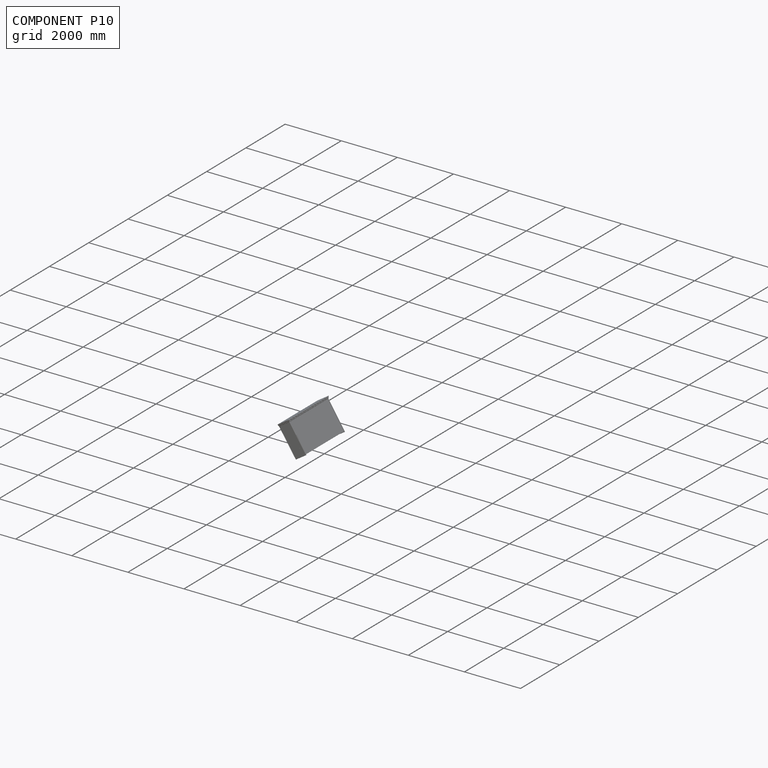
[diagram: component P10 — assembled]
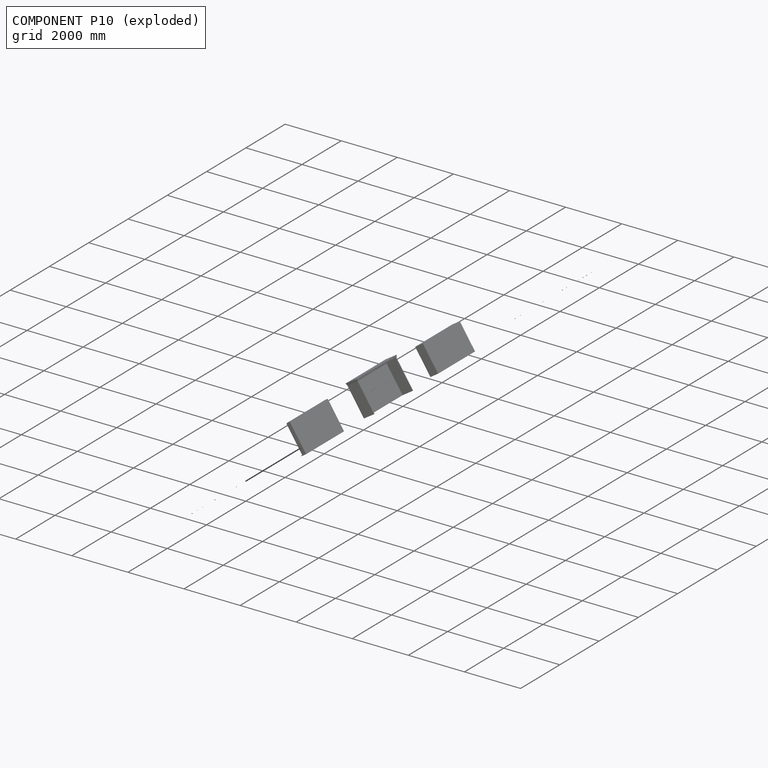
[diagram: component P10 — exploded]
COMPONENT P10 — same part as P0 (CADFS 00953849); its construction recipe is shown at P0.
Held by: REVOLUTE mate "Revolute 10" to P13; REVOLUTE mate "Revolute 11" to P8.
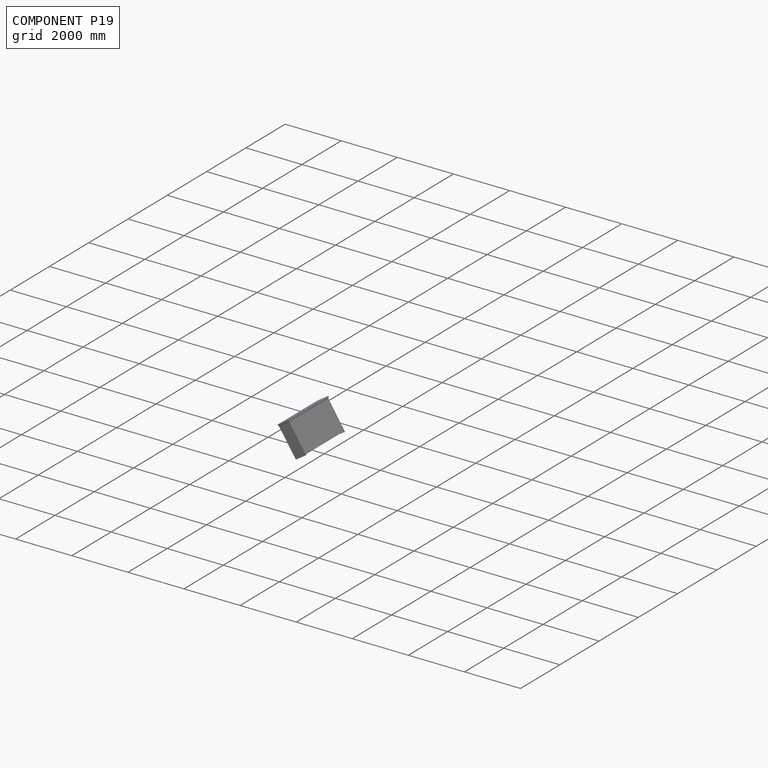
[diagram: component P19 — assembled]
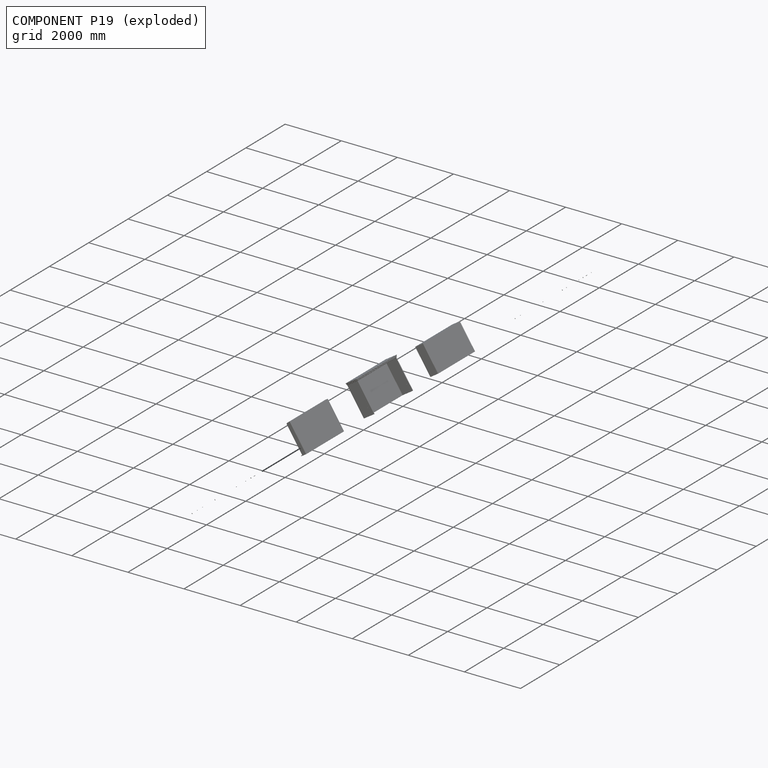
[diagram: component P19 — exploded]
COMPONENT P19 — same part as P2 (CADFS 00953851); its construction recipe is shown at P2.
Held by: REVOLUTE mate "Revolute 17" to P8.
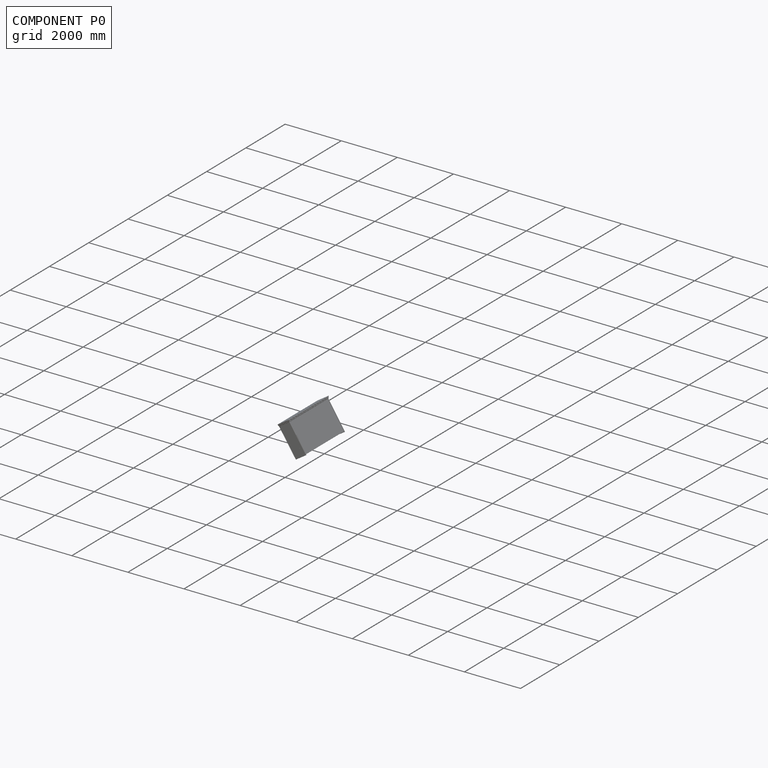
[diagram: component P0 — assembled]
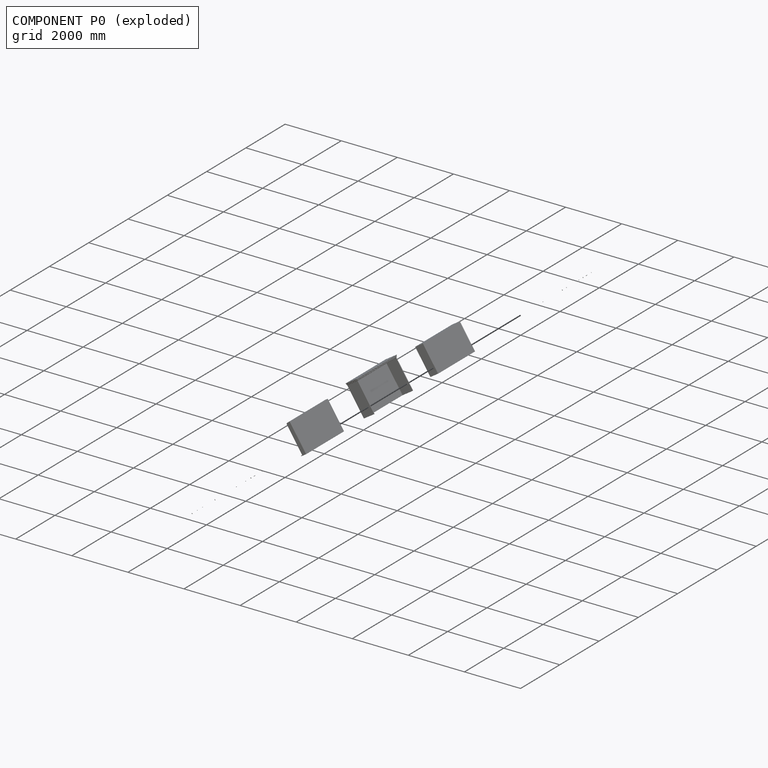
[diagram: component P0 — exploded]
COMPONENT P0 — recipe-attached (CADFS 00953849, mesh-verified: the recipe's output STEP matches this component's geometry to below the mesh-comparison resolution (tessellation chordal tolerance ~0.0428 mm)).
Held by: REVOLUTE mate "Revolute 6" to P1; REVOLUTE mate "Revolute 7" to P18.
Construction recipe (FeatureScript — the CAD program that rebuilds this solid; sketch coordinates are in the units given by the * unit suffixes, e.g. mm):

FeatureScript 1511;
import(path : "onshape/std/geometry.fs", version : "1511.0");
import(path : "onshape/std/common.fs", version : "1511.0");
const mm = millimeter;
const VERTEX = EntityType.VERTEX;
const EDGE = EntityType.EDGE;
const FACE = EntityType.FACE;
const BODY = EntityType.BODY;
function v(x, y){return vector(x, y);}
function OD(order){return orderDisambiguation(order);}
function OSD(set){return originalSetDisambiguation(set);}
function TD(topology){return topologyDisambiguation(topology);}
function TDD(query){return trueDependencyDisambiguation(query);}
function sQuery(a, b, c) {return sketchEntityQuery(a, b, c);}

annotation { "Feature Type Name" : "Feature", "Feature Type Description" : "" }
export const myFeature = defineFeature(function(context is Context, id is Id, definition is map)
    precondition{}
    {
        {
            var Q0;
            Q0=qCreatedBy(makeId("Front.planeOp"),FACE);
            var sketch = newSketch(context, id + "F0", { "sketchPlane" : qUnion([Q0])});
            skCircle(sketch, "E0", {"center": v(0, 0) * mm, "radius": 6.35 * mm});
            skCircle(sketch, "E1", {"center": v(0, 0) * mm, "radius": 9.53 * mm});
            skSolve(sketch);
        }
        {
            var Q0;
            Q0 = qSketchRegion(id + "F0", true);
            extrude(context, id + "F1", {"entities" : qUnion([Q0]), "depth" : 9.52 * mm, "offsetDistance" : 25.4 * mm});
        }
    });
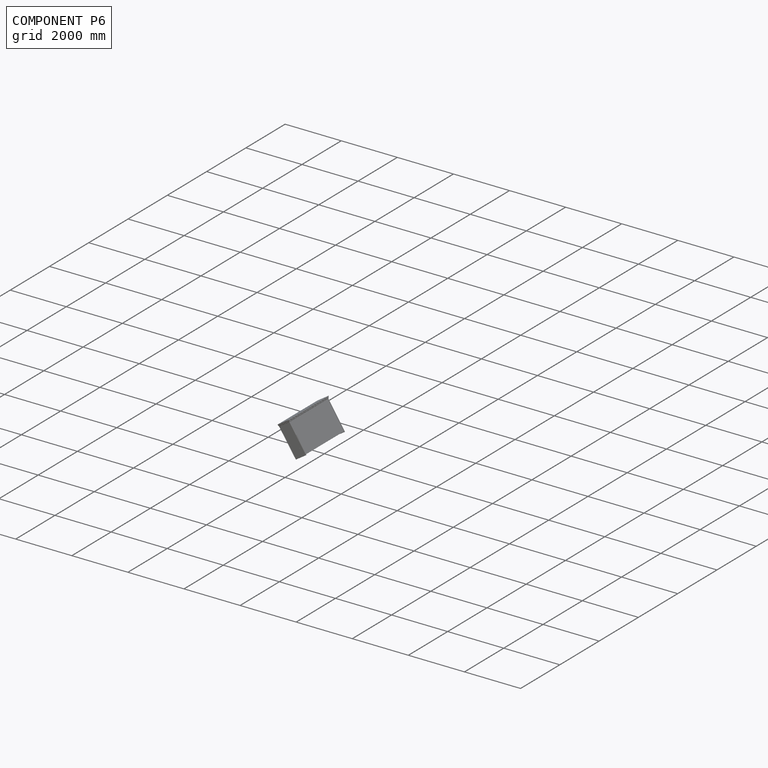
[diagram: component P6 — assembled]
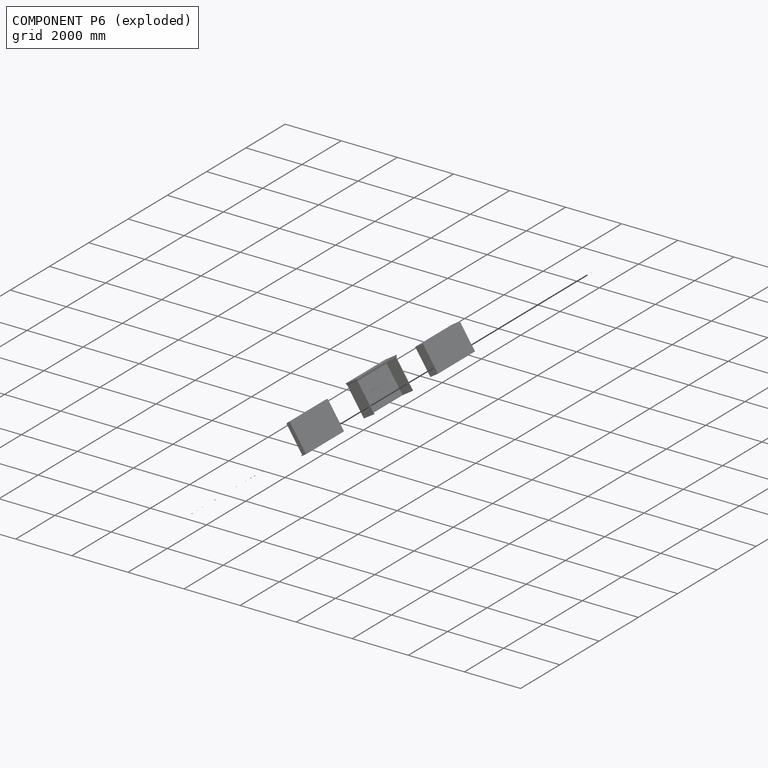
[diagram: component P6 — exploded]
COMPONENT P6 — recipe-attached (CADFS 00953852, mesh-verified: the recipe's output STEP matches this component's geometry to below the mesh-comparison resolution (tessellation chordal tolerance ~0.1 mm)).
Held by: REVOLUTE mate "Revolute 18" to P1.
Construction recipe (FeatureScript — the CAD program that rebuilds this solid; sketch coordinates are in the units given by the * unit suffixes, e.g. mm):

FeatureScript 1511;
import(path : "onshape/std/geometry.fs", version : "1511.0");
import(path : "onshape/std/common.fs", version : "1511.0");
const mm = millimeter;
const VERTEX = EntityType.VERTEX;
const EDGE = EntityType.EDGE;
const FACE = EntityType.FACE;
const BODY = EntityType.BODY;
function v(x, y){return vector(x, y);}
function OD(order){return orderDisambiguation(order);}
function OSD(set){return originalSetDisambiguation(set);}
function TD(topology){return topologyDisambiguation(topology);}
function TDD(query){return trueDependencyDisambiguation(query);}
function sQuery(a, b, c) {return sketchEntityQuery(a, b, c);}

annotation { "Feature Type Name" : "Feature", "Feature Type Description" : "" }
export const myFeature = defineFeature(function(context is Context, id is Id, definition is map)
    precondition{}
    {
        {
            var Q0;
            Q0=qCreatedBy(makeId("Front.planeOp"),FACE);
            var sketch = newSketch(context, id + "F0", { "sketchPlane" : qUnion([Q0])});
            skCircle(sketch, "E0.cCircle", {"center": v(0, 0) * mm, "radius": 9.52 * mm, "construction": true});
            skLineSegment(sketch, "E0.0", {"start": v(-11, 0) * mm, "end": v(-5.5, 9.53) * mm});
            skLineSegment(sketch, "E0.1", {"start": v(-5.5, 9.53) * mm, "end": v(5.5, 9.52) * mm});
            skLineSegment(sketch, "E0.2", {"start": v(5.5, 9.53) * mm, "end": v(11, 0) * mm});
            skLineSegment(sketch, "E0.3", {"start": v(11, 0) * mm, "end": v(5.5, -9.52) * mm});
            skLineSegment(sketch, "E0.4", {"start": v(5.5, -9.53) * mm, "end": v(-5.5, -9.52) * mm});
            skLineSegment(sketch, "E0.5", {"start": v(-5.5, -9.53) * mm, "end": v(-11, 0) * mm});
            skPoint(sketch, "E0.0.midPoint", {"position": v(-8.25, 4.76) * mm});
            skSolve(sketch);
        }
        {
            var Q0;
            Q0 = qSketchRegion(id + "F0", true);
            extrude(context, id + "F1", {"entities" : qUnion([Q0]), "depth" : 6.35 * mm, "offsetDistance" : 25.4 * mm});
        }
        {
            var Q0;
            Q0=makeQuery(id+"F1.opExtrude","CAP_FACE",FACE,{"disambiguationData":[OSD([sQuery(id+"F0.wireOp",EDGE,"E0.0"),sQuery(id+"F0.wireOp",EDGE,"E0.1"),sQuery(id+"F0.wireOp",EDGE,"E0.2"),sQuery(id+"F0.wireOp",EDGE,"E0.3"),sQuery(id+"F0.wireOp",EDGE,"E0.4"),sQuery(id+"F0.wireOp",EDGE,"E0.5")])],"isStart":true});
            var sketch = newSketch(context, id + "F2", { "sketchPlane" : qUnion([Q0])});
            skCircle(sketch, "E1", {"center": v(0, 0) * mm, "radius": 6.35 * mm});
            skSolve(sketch);
        }
        {
            var Q0;
            Q0 = qSketchRegion(id + "F2", true);
            extrude(context, id + "F3", {"entities" : qUnion([Q0]), "operationType" : NewBodyOperationType.ADD, "depth" : 53.97 * mm, "offsetDistance" : 25.4 * mm});
        }
        {
            var Q0;
            Q0=makeQuery(id+"F3.opExtrude","CAP_EDGE",EDGE,{"disambiguationData":[OSD([sQuery(id+"F2.wireOp",EDGE,"E1")])],"isStart":false});
            fillet(context, id + "F4", {"entities" : qUnion([Q0]), "radius" : 1.27 * mm, "tangentPropagation" : true, "allowEdgeOverflow" : false});
        }
    });
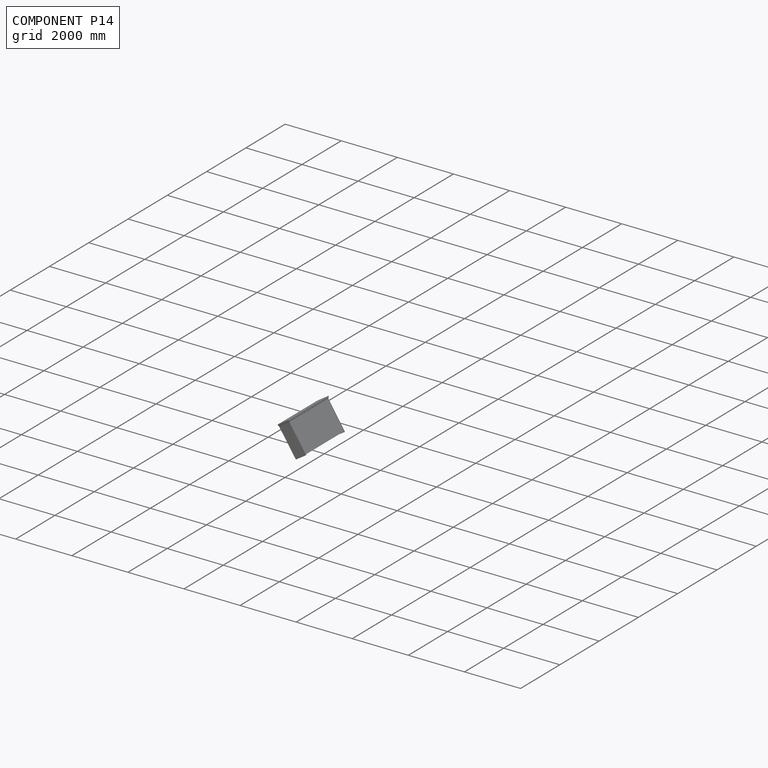
[diagram: component P14 — assembled]
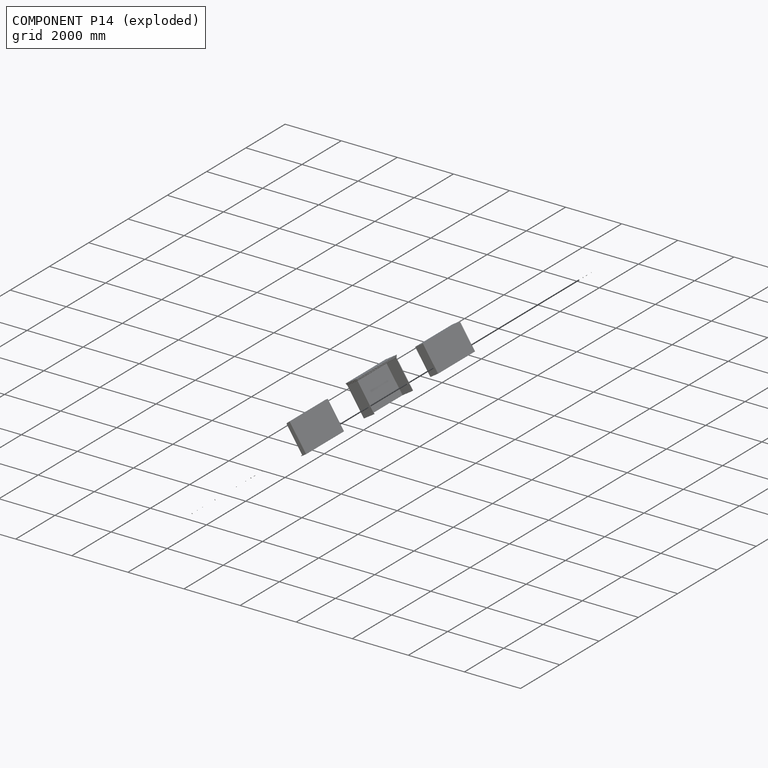
[diagram: component P14 — exploded]
COMPONENT P14 — same part as P0 (CADFS 00953849); its construction recipe is shown at P0.
Held by: REVOLUTE mate "Revolute 14" to P7; REVOLUTE mate "Revolute 13" to P20.
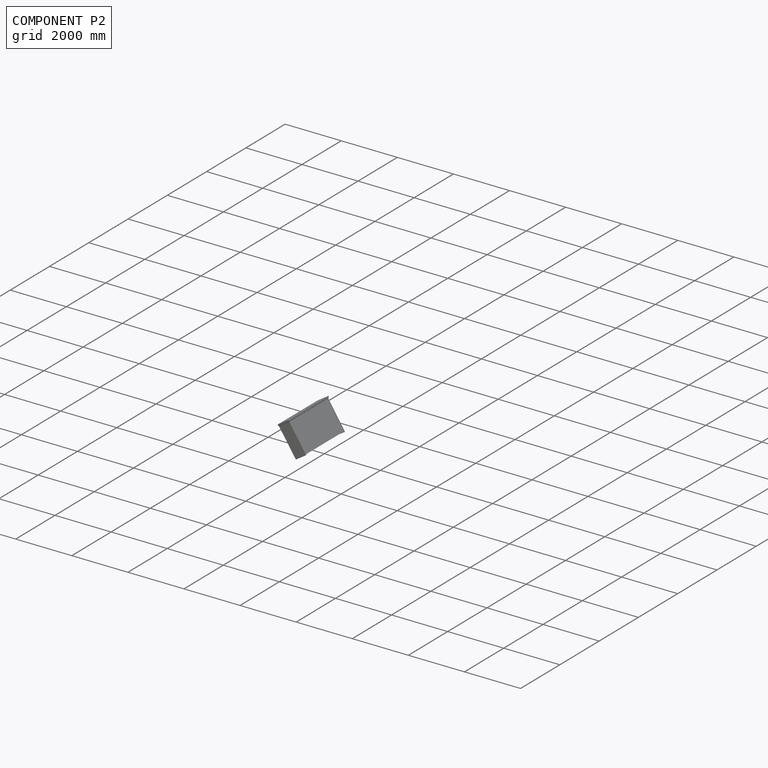
[diagram: component P2 — assembled]
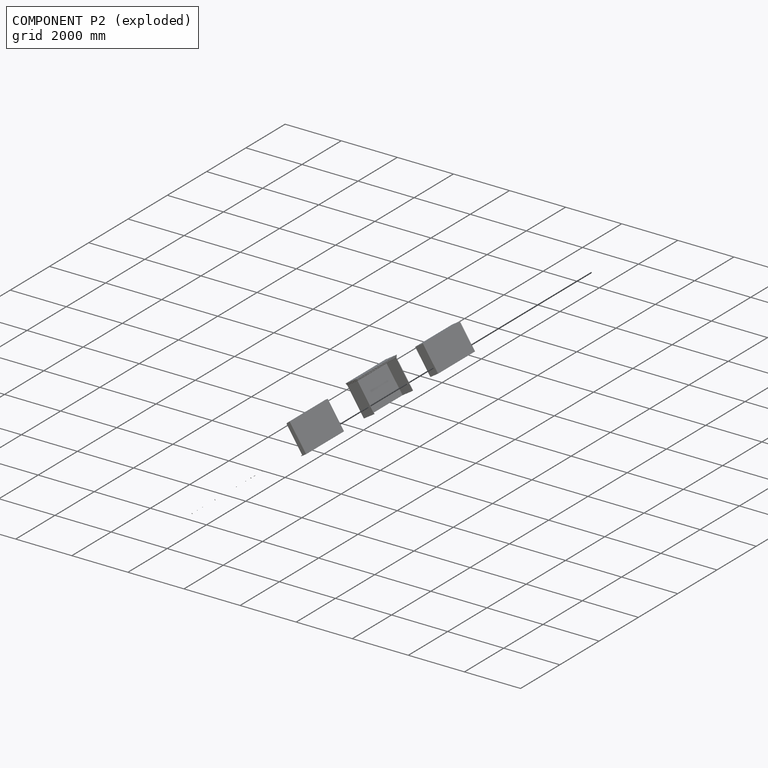
[diagram: component P2 — exploded]
COMPONENT P2 — recipe-attached (CADFS 00953851, mesh-verified: the recipe's output STEP matches this component's geometry to below the mesh-comparison resolution (tessellation chordal tolerance ~0.0459 mm)).
Held by: REVOLUTE mate "Revolute 19" to P7.
Construction recipe (FeatureScript — the CAD program that rebuilds this solid; sketch coordinates are in the units given by the * unit suffixes, e.g. mm):

FeatureScript 1511;
import(path : "onshape/std/geometry.fs", version : "1511.0");
import(path : "onshape/std/common.fs", version : "1511.0");
const mm = millimeter;
const VERTEX = EntityType.VERTEX;
const EDGE = EntityType.EDGE;
const FACE = EntityType.FACE;
const BODY = EntityType.BODY;
function v(x, y){return vector(x, y);}
function OD(order){return orderDisambiguation(order);}
function OSD(set){return originalSetDisambiguation(set);}
function TD(topology){return topologyDisambiguation(topology);}
function TDD(query){return trueDependencyDisambiguation(query);}
function sQuery(a, b, c) {return sketchEntityQuery(a, b, c);}

annotation { "Feature Type Name" : "Feature", "Feature Type Description" : "" }
export const myFeature = defineFeature(function(context is Context, id is Id, definition is map)
    precondition{}
    {
        {
            var Q0;
            Q0=qCreatedBy(makeId("Front.planeOp"),FACE);
            var sketch = newSketch(context, id + "F0", { "sketchPlane" : qUnion([Q0])});
            skCircle(sketch, "E0.cCircle", {"center": v(0, 0) * mm, "radius": 9.53 * mm, "construction": true});
            skLineSegment(sketch, "E0.0", {"start": v(-5.5, 9.53) * mm, "end": v(5.5, 9.53) * mm});
            skLineSegment(sketch, "E0.1", {"start": v(5.5, 9.53) * mm, "end": v(11, 0) * mm});
            skLineSegment(sketch, "E0.2", {"start": v(11, 0) * mm, "end": v(5.5, -9.52) * mm});
            skLineSegment(sketch, "E0.3", {"start": v(5.5, -9.52) * mm, "end": v(-5.5, -9.53) * mm});
            skLineSegment(sketch, "E0.4", {"start": v(-5.5, -9.53) * mm, "end": v(-11, 0) * mm});
            skLineSegment(sketch, "E0.5", {"start": v(-11, 0) * mm, "end": v(-5.5, 9.52) * mm});
            skPoint(sketch, "E0.0.midPoint", {"position": v(0, 9.53) * mm});
            skCircle(sketch, "E1", {"center": v(0, 0) * mm, "radius": 6.35 * mm});
            skSolve(sketch);
        }
        {
            var Q0;
            Q0 = qSketchRegion(id + "F0", true);
            extrude(context, id + "F1", {"entities" : qUnion([Q0]), "depth" : 9.52 * mm, "offsetDistance" : 25.4 * mm});
        }
    });
